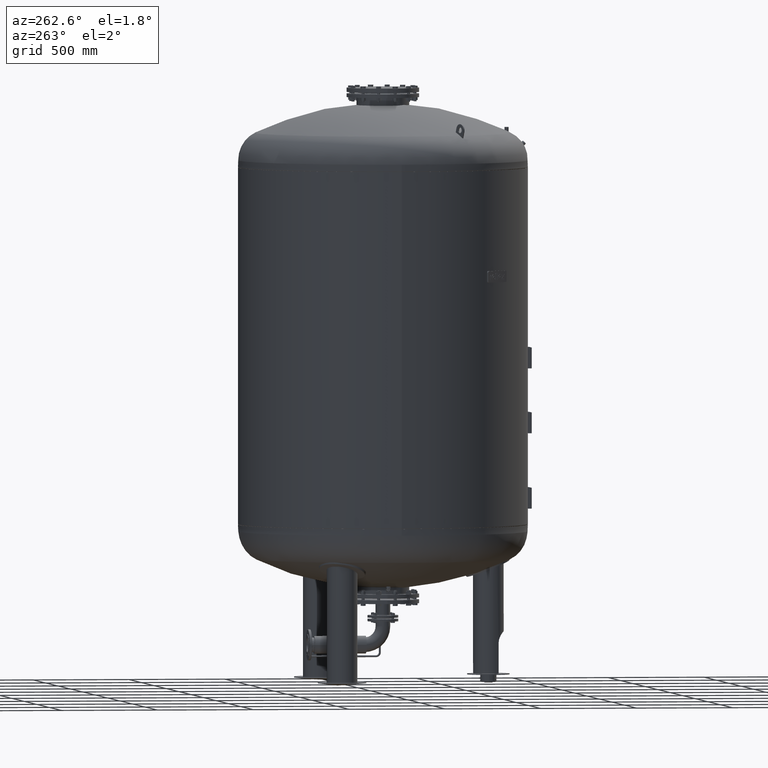
[diagram: clean part render]
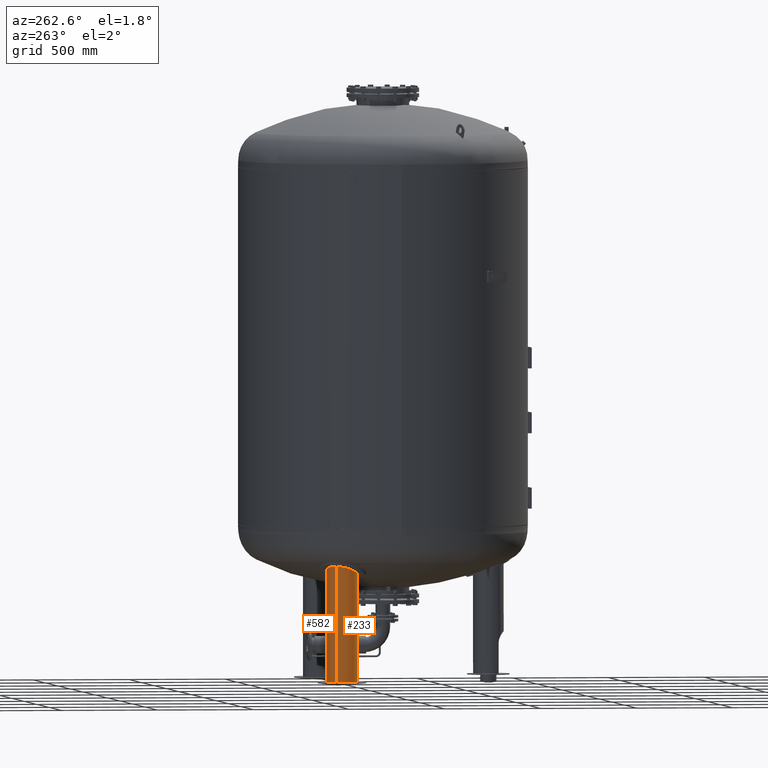
[diagram: same view with one multi-face feature highlighted, each face labeled with its STEP entity id]
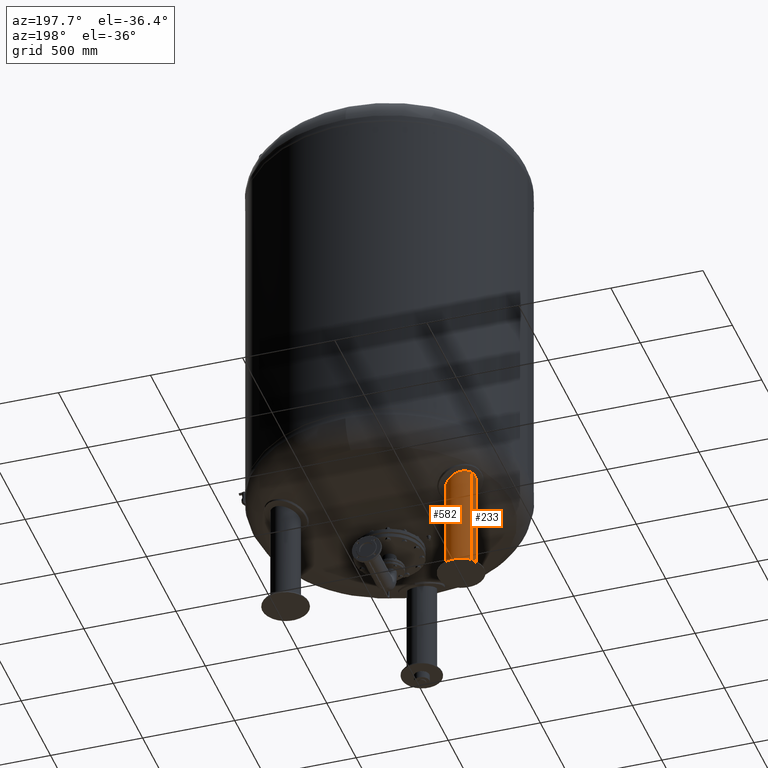
[diagram: same view with one multi-face feature highlighted, each face labeled with its STEP entity id]
A machine part, auxiliary view. The highlighted faces form ONE feature: a constant-radius fillet chain: 2 tangent blend faces with common blend radius 79.5 mm. The faces share edges in the B-rep.
A second angle (auxiliary view) of the same feature is appended — it is thin or edge-on in the first view.
Their STEP definitions:
[1] entity #582 (Cylinder):
#172=CARTESIAN_POINT('',(-545.162991682303980,314.750000000000060,11.631170282581067));
#173=VERTEX_POINT('',#172);
#174=CARTESIAN_POINT('',(-545.162991682304550,314.750000000000450,619.974328976416250));
#175=VERTEX_POINT('',#174);
#176=CARTESIAN_POINT('',(-545.162991682303980,314.750000000000060,11.631170282581067));
#177=DIRECTION('',(0.0,0.0,1.0));
#178=VECTOR('',#177,608.343158693835220);
#179=LINE('',#176,#178);
#180=EDGE_CURVE('',#173,#175,#179,.T.);
#182=CARTESIAN_POINT('',(-407.464952480578290,235.250000000000060,11.631170282581067));
#183=VERTEX_POINT('',#182);
#191=CARTESIAN_POINT('',(-407.464952480578230,235.250000000000140,557.801446445446800));
#192=VERTEX_POINT('',#191);
#193=CARTESIAN_POINT('',(-407.464952480578290,235.250000000000060,11.631170282581067));
#194=DIRECTION('',(0.0,0.0,1.0));
#195=VECTOR('',#194,546.170276162865780);
#196=LINE('',#193,#195);
#197=EDGE_CURVE('',#183,#192,#196,.T.);
#279=CARTESIAN_POINT('',(-435.923993297311370,343.475540259406330,588.259208461118190));
#280=VERTEX_POINT('',#279);
#281=CARTESIAN_POINT('',(-435.923993297311370,343.475540259406330,588.259208461118190));
#282=CARTESIAN_POINT('',(-428.294244079324590,338.975168186761210,584.797146556691930));
#283=CARTESIAN_POINT('',(-421.432219721340520,333.208904948055650,581.360502151041940));
#284=CARTESIAN_POINT('',(-408.717320989592280,318.197262877139110,574.174236989335670));
#285=CARTESIAN_POINT('',(-403.428779549836580,308.594560981841880,570.549958778381670));
#286=CARTESIAN_POINT('',(-397.284632061759960,288.348202161642860,564.600364334074580));
#287=CARTESIAN_POINT('',(-396.189586487437570,278.010947247717640,562.252334812652180));
#288=CARTESIAN_POINT('',(-398.071116691459050,257.806862096045680,559.003880738072780));
#289=CARTESIAN_POINT('',(-400.811446048780570,248.180804466063190,558.070588206412370));
#290=CARTESIAN_POINT('',(-405.983358000271210,237.903174880540690,557.818088260262240));
#291=CARTESIAN_POINT('',(-406.705844140872780,236.564814212819240,557.801446445446800));
#292=CARTESIAN_POINT('',(-407.464952480578230,235.250000000000140,557.801446445446800));
#293=B_SPLINE_CURVE_WITH_KNOTS('',3,(#281,#282,#283,#284,#285,#286,#287,#288,#289,#290,#291,#292),.UNSPECIFIED.,.F.,.U.,(4,2,2,2,2,4),(13.058196146459961,15.908544671985489,19.326182717890447,22.493256912797680,25.489178793934588,25.946274642103891),.UNSPECIFIED.);
#294=EDGE_CURVE('',#280,#192,#293,.T.);
#545=CARTESIAN_POINT('',(-545.162991682303980,314.750000000000110,619.974328976416470));
#546=CARTESIAN_POINT('',(-540.366890598841340,323.057090754793140,619.974328976416020));
#547=CARTESIAN_POINT('',(-534.131807051763190,330.386322806354370,619.280247607236110));
#548=CARTESIAN_POINT('',(-519.299997618791850,342.575536920710190,616.585819491894090));
#549=CARTESIAN_POINT('',(-510.836973519929360,347.237482487707330,614.592514188904490));
#550=CARTESIAN_POINT('',(-492.270020921124630,353.538138546992290,609.453155597640030));
#551=CARTESIAN_POINT('',(-482.267074518464090,354.891128663839990,606.286372499794770));
#552=CARTESIAN_POINT('',(-461.710332890184820,353.875417057553590,599.055880090259170));
#553=CARTESIAN_POINT('',(-451.315557892038040,351.203205063835750,594.989155554557560));
#554=CARTESIAN_POINT('',(-439.795744250857300,345.651357521946750,589.995750597807050));
#555=CARTESIAN_POINT('',(-437.835763685399230,344.603189126760700,589.126690109794940));
#556=CARTESIAN_POINT('',(-435.923993297311370,343.475540259406330,588.259208461118190));
#557=B_SPLINE_CURVE_WITH_KNOTS('',3,(#545,#546,#547,#548,#549,#550,#551,#552,#553,#554,#555,#556),.UNSPECIFIED.,.F.,.U.,(4,2,2,2,2,4),(0.0,2.877660650077480,5.813761654146234,8.951189755024860,12.343990246483170,13.058196146459961),.UNSPECIFIED.);
#558=EDGE_CURVE('',#175,#280,#557,.T.);
#564=CARTESIAN_POINT('',(-476.313972081441140,275.000000000000060,15.815585141290533));
#565=DIRECTION('',(-9.184851E-017,-1.590863E-016,-1.0));
#566=DIRECTION('',(-0.866025403784439,0.500000000000000,0.0));
#567=AXIS2_PLACEMENT_3D('',#564,#565,#566);
#568=CYLINDRICAL_SURFACE('',#567,79.500000000000000);
#569=ORIENTED_EDGE('',*,*,#180,.T.);
#570=ORIENTED_EDGE('',*,*,#558,.T.);
#571=ORIENTED_EDGE('',*,*,#294,.T.);
#572=ORIENTED_EDGE('',*,*,#197,.F.);
#573=CARTESIAN_POINT('',(-476.313972081441140,275.000000000000060,11.631170282581067));
#574=DIRECTION('',(0.0,0.0,-1.0));
#575=DIRECTION('',(-0.866025403784439,0.500000000000000,0.0));
#576=AXIS2_PLACEMENT_3D('',#573,#574,#575);
#577=CIRCLE('',#576,79.500000000000000);
#578=EDGE_CURVE('',#173,#183,#577,.T.);
#579=ORIENTED_EDGE('',*,*,#578,.F.);
#580=EDGE_LOOP('',(#569,#570,#571,#572,#579));
#581=FACE_OUTER_BOUND('',#580,.T.);
#582=ADVANCED_FACE('',(#581),#568,.T.);
[2] entity #233 (Cylinder):
#167=CARTESIAN_POINT('',(-476.313972081441140,275.000000000000060,15.815585141290533));
#168=DIRECTION('',(-9.184851E-017,-1.590863E-016,-1.0));
#169=DIRECTION('',(-0.866025403784439,0.500000000000000,0.0));
#170=AXIS2_PLACEMENT_3D('',#167,#168,#169);
#171=CYLINDRICAL_SURFACE('',#170,79.500000000000000);
#172=CARTESIAN_POINT('',(-545.162991682303980,314.750000000000060,11.631170282581067));
#173=VERTEX_POINT('',#172);
#174=CARTESIAN_POINT('',(-545.162991682304550,314.750000000000450,619.974328976416250));
#175=VERTEX_POINT('',#174);
#176=CARTESIAN_POINT('',(-545.162991682303980,314.750000000000060,11.631170282581067));
#177=DIRECTION('',(0.0,0.0,1.0));
#178=VECTOR('',#177,608.343158693835220);
#179=LINE('',#176,#178);
#180=EDGE_CURVE('',#173,#175,#179,.T.);
#181=ORIENTED_EDGE('',*,*,#180,.F.);
#182=CARTESIAN_POINT('',(-407.464952480578290,235.250000000000060,11.631170282581067));
#183=VERTEX_POINT('',#182);
#184=CARTESIAN_POINT('',(-476.313972081441140,275.000000000000060,11.631170282581067));
#185=DIRECTION('',(0.0,0.0,-1.0));
#186=DIRECTION('',(-0.866025403784439,0.500000000000000,0.0));
#187=AXIS2_PLACEMENT_3D('',#184,#185,#186);
#188=CIRCLE('',#187,79.500000000000000);
#189=EDGE_CURVE('',#183,#173,#188,.T.);
#190=ORIENTED_EDGE('',*,*,#189,.F.);
#191=CARTESIAN_POINT('',(-407.464952480578230,235.250000000000140,557.801446445446800));
#192=VERTEX_POINT('',#191);
#193=CARTESIAN_POINT('',(-407.464952480578290,235.250000000000060,11.631170282581067));
#194=DIRECTION('',(0.0,0.0,1.0));
#195=VECTOR('',#194,546.170276162865780);
#196=LINE('',#193,#195);
#197=EDGE_CURVE('',#183,#192,#196,.T.);
#198=ORIENTED_EDGE('',*,*,#197,.T.);
#199=CARTESIAN_POINT('',(-515.420540091885980,205.783482184926270,588.259208461118420));
#200=VERTEX_POINT('',#199);
#201=CARTESIAN_POINT('',(-407.464952480578230,235.250000000000140,557.801446445446800));
#202=CARTESIAN_POINT('',(-411.525284235391100,228.217299105078920,557.801446445446800));
#203=CARTESIAN_POINT('',(-416.633408486805080,221.858280027431760,558.277369662588170));
#204=CARTESIAN_POINT('',(-429.761674803730950,209.827814395284460,560.328261777430270));
#205=CARTESIAN_POINT('',(-437.984686074917310,204.702974823101580,562.075596332598020));
#206=CARTESIAN_POINT('',(-456.175474625067690,197.436185727422980,566.734659420112730));
#207=CARTESIAN_POINT('',(-466.033210859583900,195.556981402014120,569.661195647944850));
#208=CARTESIAN_POINT('',(-486.479592551512610,195.441118239628740,576.486089468713540));
#209=CARTESIAN_POINT('',(-496.909310680895430,197.506578863575210,580.391859104990320));
#210=CARTESIAN_POINT('',(-509.612134853003400,202.734511174030440,585.699021239809100));
#211=CARTESIAN_POINT('',(-512.567447715403090,204.171516507035560,586.978453284904390));
#212=CARTESIAN_POINT('',(-515.420540091885980,205.783482184926270,588.259208461118420));
#213=B_SPLINE_CURVE_WITH_KNOTS('',3,(#201,#202,#203,#204,#205,#206,#207,#208,#209,#210,#211,#212),.UNSPECIFIED.,.F.,.U.,(4,2,2,2,2,4),(25.946274642103891,28.391196783303212,31.323094720106891,34.426409319311013,37.777807879739491,38.832927063684011),.UNSPECIFIED.);
#214=EDGE_CURVE('',#192,#200,#213,.T.);
#215=ORIENTED_EDGE('',*,*,#214,.T.);
#216=CARTESIAN_POINT('',(-515.420540091885980,205.783482184926270,588.259208461118420));
#217=CARTESIAN_POINT('',(-522.189871946945350,209.608079910030260,591.297966296069940));
#218=CARTESIAN_POINT('',(-528.383718873332780,214.417560257502800,594.344322088061060));
#219=CARTESIAN_POINT('',(-541.284952864477080,227.918131708280870,601.394273940897850));
#220=CARTESIAN_POINT('',(-547.177725508011460,237.298610240627000,605.264897102246320));
#221=CARTESIAN_POINT('',(-554.498555675811300,257.327220450158220,611.749699955350710));
#222=CARTESIAN_POINT('',(-556.170213519301800,267.666267272131960,614.383971692484580));
#223=CARTESIAN_POINT('',(-555.498438054978580,284.487964787748180,617.505471067215810));
#224=CARTESIAN_POINT('',(-554.492404166263550,290.789603093066490,618.415766111970470));
#225=CARTESIAN_POINT('',(-550.944328273743390,303.147603069283660,619.656658887407730));
#226=CARTESIAN_POINT('',(-548.407602199616920,309.130169733241190,619.974328976416020));
#227=CARTESIAN_POINT('',(-545.162991682303750,314.750000000000000,619.974328976416020));
#228=B_SPLINE_CURVE_WITH_KNOTS('',3,(#216,#217,#218,#219,#220,#221,#222,#223,#224,#225,#226,#227),.UNSPECIFIED.,.F.,.U.,(4,2,2,2,2,4),(38.832927063684011,41.336334230459492,44.806614551580793,48.013896662752792,49.941938919734973,51.888705230122902),.UNSPECIFIED.);
#229=EDGE_CURVE('',#200,#175,#228,.T.);
#230=ORIENTED_EDGE('',*,*,#229,.T.);
#231=EDGE_LOOP('',(#181,#190,#198,#215,#230));
#232=FACE_OUTER_BOUND('',#231,.T.);
#233=ADVANCED_FACE('',(#232),#171,.T.);